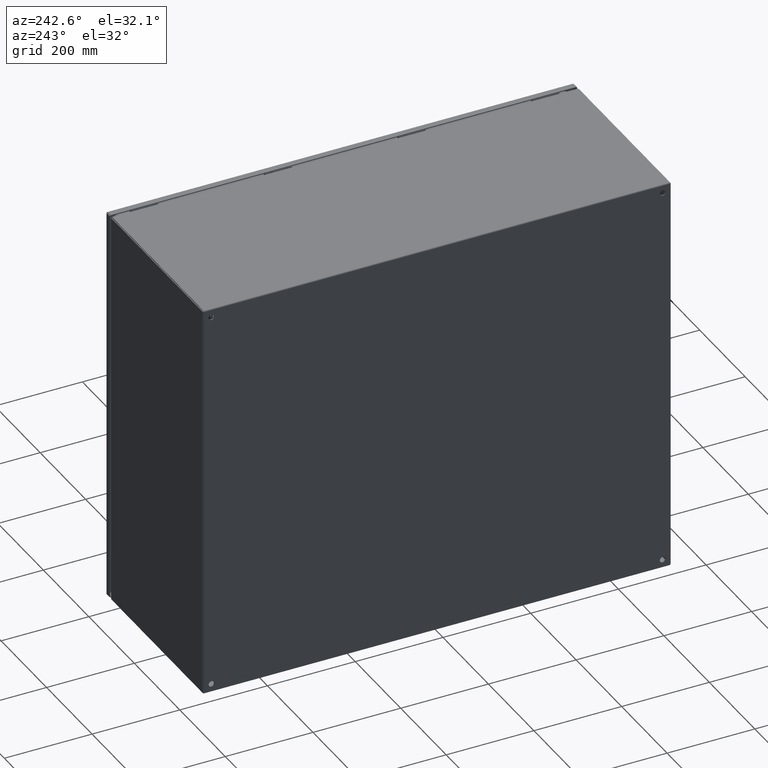
[diagram: clean part render]
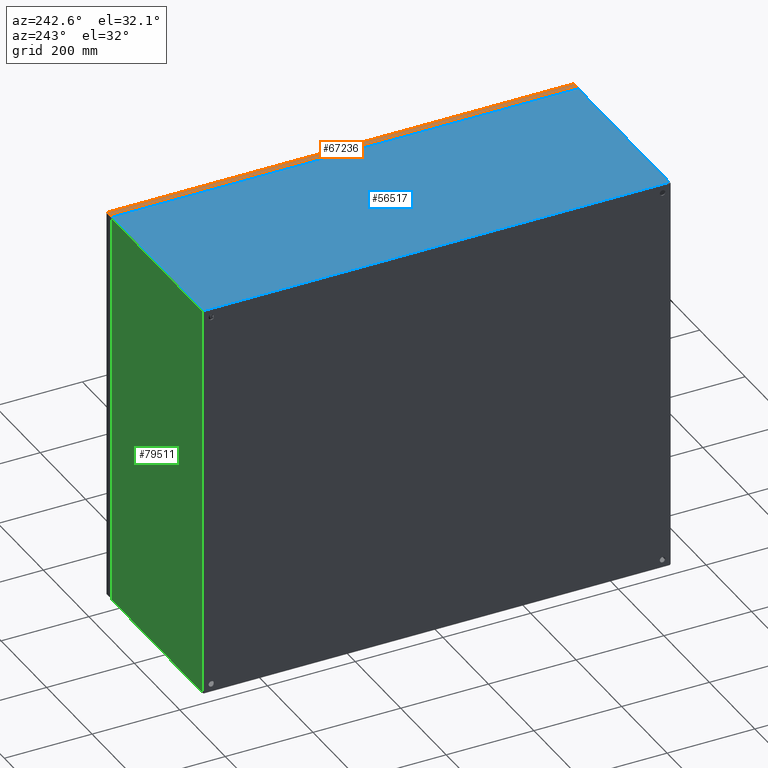
[diagram: same view with three faces highlighted in distinct colors, each labeled with its STEP entity id]
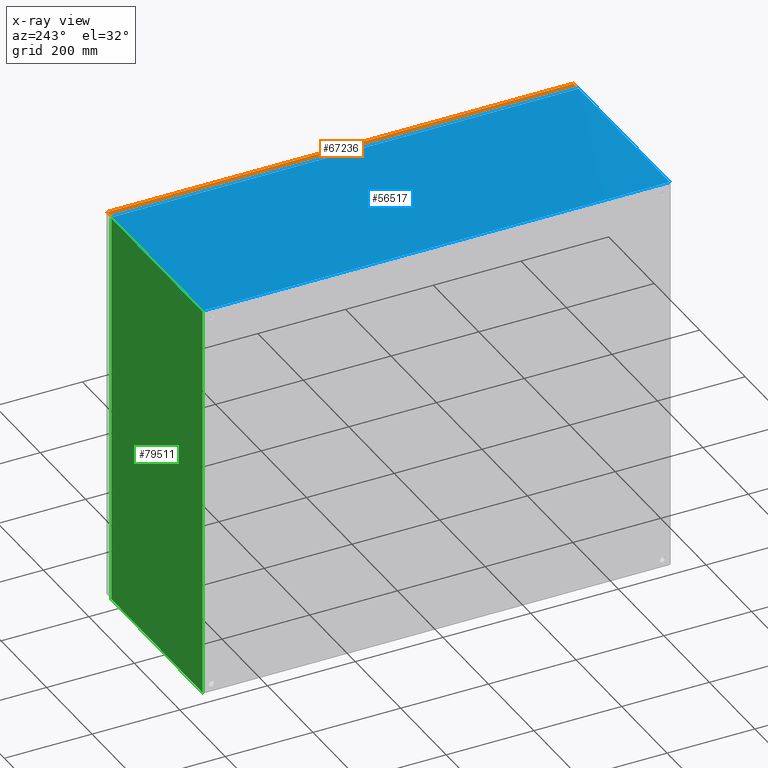
[diagram: x-ray of the same camera — body ghosted, the three highlighted faces saturated]
A machine part, auxiliary view with three faces highlighted in distinct colors.
The next image is the same camera in x-ray (body ghosted, the three faces saturated) — at least one of them is partly hidden behind the body in this view.
Their STEP definitions:

[orange] entity #67236 — the highlighted planar face has unit normal (-0, -0, 1).
#1402 = DIRECTION ( 'NONE',  ( -1.000000000000000000, 6.123031769111889989E-17, 0.0000000000000000000 ) ) ;
#1494 = FACE_OUTER_BOUND ( 'NONE', #92315, .T. ) ;
#1743 = DIRECTION ( 'NONE',  ( 6.123031769111889989E-17, 1.000000000000000000, -0.0000000000000000000 ) ) ;
#4635 = CARTESIAN_POINT ( 'NONE',  ( -17.99599999999999511, -16.72900000000008092, -20.87649999999403505 ) ) ;
#9529 = CARTESIAN_POINT ( 'NONE',  ( -17.99599999999999511, -16.21200000000003882, -20.91242125983655598 ) ) ;
#10600 = CARTESIAN_POINT ( 'NONE',  ( -17.99599999999999511, -16.77450000000003882, 20.91242125984848599 ) ) ;
#13125 = VERTEX_POINT ( 'NONE', #9529 ) ;
#14225 = CARTESIAN_POINT ( 'NONE',  ( -17.99599999999999511, -16.72900000000005960, -20.91242125983655598 ) ) ;
#17725 = ORIENTED_EDGE ( 'NONE', *, *, #102538, .T. ) ;
#20635 = VECTOR ( 'NONE', #89660, 39.37007874015748143 ) ;
#20979 = VECTOR ( 'NONE', #110956, 39.37007874015748143 ) ;
#25562 = VERTEX_POINT ( 'NONE', #65019 ) ;
#27446 = CARTESIAN_POINT ( 'NONE',  ( -17.99599999999999511, -16.21200000000003882, -20.91242125983655598 ) ) ;
#36536 = DIRECTION ( 'NONE',  ( -6.123031769111889989E-17, -1.000000000000000000, 0.0000000000000000000 ) ) ;
#50634 = LINE ( 'NONE', #4635, #92584 ) ;
#56136 = LINE ( 'NONE', #10600, #96622 ) ;
#58624 = EDGE_CURVE ( 'NONE', #25562, #105261, #50634, .T. ) ;
#65019 = CARTESIAN_POINT ( 'NONE',  ( -17.99599999999999511, -16.72900000000005605, 20.91242125984848599 ) ) ;
#66164 = EDGE_CURVE ( 'NONE', #118208, #13125, #82690, .T. ) ;
#67236 = ADVANCED_FACE ( 'NONE', ( #1494 ), #73721, .T. ) ;
#73721 = PLANE ( 'NONE',  #102530 ) ;
#75344 = CARTESIAN_POINT ( 'NONE',  ( -17.99599999999999511, -16.21200000000003882, 20.91242125984848599 ) ) ;
#82690 = LINE ( 'NONE', #116692, #20635 ) ;
#83012 = LINE ( 'NONE', #27446, #20979 ) ;
#86638 = DIRECTION ( 'NONE',  ( -0.0000000000000000000, -6.123031769111889989E-17, -1.000000000000000000 ) ) ;
#89660 = DIRECTION ( 'NONE',  ( -0.0000000000000000000, -0.0000000000000000000, -1.000000000000000000 ) ) ;
#92315 = EDGE_LOOP ( 'NONE', ( #103328, #107496, #108045, #17725 ) ) ;
#92584 = VECTOR ( 'NONE', #86638, 39.37007874015748143 ) ;
#96622 = VECTOR ( 'NONE', #1743, 39.37007874015748143 ) ;
#102179 = EDGE_CURVE ( 'NONE', #25562, #118208, #56136, .T. ) ;
#102530 = AXIS2_PLACEMENT_3D ( 'NONE', #119662, #1402, #36536 ) ;
#102538 = EDGE_CURVE ( 'NONE', #13125, #105261, #83012, .T. ) ;
#103328 = ORIENTED_EDGE ( 'NONE', *, *, #58624, .F. ) ;
#105261 = VERTEX_POINT ( 'NONE', #14225 ) ;
#107496 = ORIENTED_EDGE ( 'NONE', *, *, #102179, .T. ) ;
#108045 = ORIENTED_EDGE ( 'NONE', *, *, #66164, .T. ) ;
#110956 = DIRECTION ( 'NONE',  ( 0.0000000000000000000, -1.000000000000000000, -0.0000000000000000000 ) ) ;
#116692 = CARTESIAN_POINT ( 'NONE',  ( -17.99599999999999511, -16.21200000000003882, -20.87649999999403505 ) ) ;
#118208 = VERTEX_POINT ( 'NONE', #75344 ) ;
#119662 = CARTESIAN_POINT ( 'NONE',  ( -17.99599999999999511, -16.77450000000003882, -20.87649999999403505 ) ) ;

[blue] entity #56517 — the highlighted planar face has unit normal (-0, -0, -1).
#2256 = CARTESIAN_POINT ( 'NONE',  ( -18.00000000000000000, -16.00000000000000000, -146.4060000000000059 ) ) ;
#3836 = VERTEX_POINT ( 'NONE', #108153 ) ;
#4781 = CARTESIAN_POINT ( 'NONE',  ( -18.00000000000000355, -0.07200000000000078559, 20.92800000000000438 ) ) ;
#7304 = DIRECTION ( 'NONE',  ( 0.0000000000000000000, 0.0000000000000000000, 1.000000000000000000 ) ) ;
#14749 = LINE ( 'NONE', #4781, #27755 ) ;
#15773 = CARTESIAN_POINT ( 'NONE',  ( -18.00000000000000000, -0.1079999999999980143, -20.92799999999992266 ) ) ;
#19648 = EDGE_LOOP ( 'NONE', ( #81632, #100059, #68617, #112712 ) ) ;
#20867 = DIRECTION ( 'NONE',  ( -1.224646799147350002E-16, 1.000000000000000000, 0.0000000000000000000 ) ) ;
#23932 = FACE_OUTER_BOUND ( 'NONE', #19648, .T. ) ;
#26068 = CARTESIAN_POINT ( 'NONE',  ( -18.00000000000000000, -15.89199999999999946, -146.4060000000000059 ) ) ;
#27755 = VECTOR ( 'NONE', #31050, 39.37007874015748143 ) ;
#31050 = DIRECTION ( 'NONE',  ( -5.751216582458665737E-49, 1.000000000000000000, -4.696224729009950149E-33 ) ) ;
#31810 = EDGE_CURVE ( 'NONE', #108813, #3836, #76095, .T. ) ;
#32457 = VERTEX_POINT ( 'NONE', #114344 ) ;
#39813 = PLANE ( 'NONE',  #84505 ) ;
#41284 = EDGE_CURVE ( 'NONE', #85020, #32457, #64818, .T. ) ;
#42076 = EDGE_CURVE ( 'NONE', #85020, #3836, #54258, .T. ) ;
#45514 = DIRECTION ( 'NONE',  ( 5.751216582458665737E-49, -1.000000000000000000, -4.696224729009950149E-33 ) ) ;
#53199 = VECTOR ( 'NONE', #7304, 39.37007874015748143 ) ;
#54258 = LINE ( 'NONE', #82681, #99015 ) ;
#56517 = ADVANCED_FACE ( 'NONE', ( #23932 ), #39813, .F. ) ;
#57175 = DIRECTION ( 'NONE',  ( 1.000000000000000000, 1.224646799147350002E-16, 0.0000000000000000000 ) ) ;
#62442 = DIRECTION ( 'NONE',  ( -0.0000000000000000000, 0.0000000000000000000, -1.000000000000000000 ) ) ;
#64818 = LINE ( 'NONE', #15773, #53199 ) ;
#65549 = CARTESIAN_POINT ( 'NONE',  ( -18.00000000000000355, -15.89199999999999946, 20.92799999999999727 ) ) ;
#66416 = CARTESIAN_POINT ( 'NONE',  ( -17.99999999999999645, -0.1079999999999980143, -20.92799999999996174 ) ) ;
#68617 = ORIENTED_EDGE ( 'NONE', *, *, #42076, .T. ) ;
#76095 = LINE ( 'NONE', #26068, #81825 ) ;
#81632 = ORIENTED_EDGE ( 'NONE', *, *, #100762, .T. ) ;
#81825 = VECTOR ( 'NONE', #62442, 39.37007874015748143 ) ;
#82681 = CARTESIAN_POINT ( 'NONE',  ( -17.99999999999999645, -0.07200000000000078559, -20.92800000000000438 ) ) ;
#84505 = AXIS2_PLACEMENT_3D ( 'NONE', #2256, #57175, #20867 ) ;
#85020 = VERTEX_POINT ( 'NONE', #66416 ) ;
#99015 = VECTOR ( 'NONE', #45514, 39.37007874015748143 ) ;
#100059 = ORIENTED_EDGE ( 'NONE', *, *, #41284, .F. ) ;
#100762 = EDGE_CURVE ( 'NONE', #108813, #32457, #14749, .T. ) ;
#108153 = CARTESIAN_POINT ( 'NONE',  ( -17.99999999999999645, -15.89199999999999946, -20.92800000000000438 ) ) ;
#108813 = VERTEX_POINT ( 'NONE', #65549 ) ;
#112712 = ORIENTED_EDGE ( 'NONE', *, *, #31810, .F. ) ;
#114344 = CARTESIAN_POINT ( 'NONE',  ( -18.00000000000000355, -0.1079999999999980143, 20.92799999999996174 ) ) ;

[green] entity #79511 — the highlighted planar face has unit normal (0, 1, 0).
#10274 = CARTESIAN_POINT ( 'NONE',  ( -121.8560000000000088, -0.07200000000000075784, 20.99999999999992539 ) ) ;
#18464 = CARTESIAN_POINT ( 'NONE',  ( -121.8560000000000088, -15.89199999999999946, 20.99999999999992539 ) ) ;
#20914 = VERTEX_POINT ( 'NONE', #31503 ) ;
#21196 = EDGE_CURVE ( 'NONE', #92298, #26031, #85053, .T. ) ;
#26031 = VERTEX_POINT ( 'NONE', #36209 ) ;
#27561 = EDGE_LOOP ( 'NONE', ( #87180, #41220, #83960, #87044 ) ) ;
#28736 = CARTESIAN_POINT ( 'NONE',  ( -17.92799999999998306, -15.89199999999999946, 20.99999999999992539 ) ) ;
#30515 = CARTESIAN_POINT ( 'NONE',  ( 17.92800000000000438, -0.07200000000000075784, 20.99999999999992539 ) ) ;
#30819 = EDGE_CURVE ( 'NONE', #26031, #111791, #70135, .T. ) ;
#31503 = CARTESIAN_POINT ( 'NONE',  ( -17.92800000000000438, -0.07200000000000075784, 20.99999999999992539 ) ) ;
#36209 = CARTESIAN_POINT ( 'NONE',  ( 17.92800000000000082, -15.89199999999999946, 20.99999999999992539 ) ) ;
#39953 = PLANE ( 'NONE',  #111746 ) ;
#41220 = ORIENTED_EDGE ( 'NONE', *, *, #21196, .T. ) ;
#44790 = CARTESIAN_POINT ( 'NONE',  ( -17.92800000000000438, -0.07200000000000075784, 20.99999999999992539 ) ) ;
#49248 = DIRECTION ( 'NONE',  ( 0.0000000000000000000, -1.224646799147350002E-16, 1.000000000000000000 ) ) ;
#52710 = DIRECTION ( 'NONE',  ( 1.000000000000000000, 0.0000000000000000000, 0.0000000000000000000 ) ) ;
#55555 = EDGE_CURVE ( 'NONE', #20914, #92298, #102307, .T. ) ;
#56192 = VECTOR ( 'NONE', #52710, 39.37007874015748143 ) ;
#65139 = EDGE_CURVE ( 'NONE', #111791, #20914, #114295, .T. ) ;
#67807 = DIRECTION ( 'NONE',  ( 0.0000000000000000000, -1.000000000000000000, -1.224646799147350002E-16 ) ) ;
#70135 = LINE ( 'NONE', #95739, #110486 ) ;
#79511 = ADVANCED_FACE ( 'NONE', ( #89072 ), #39953, .T. ) ;
#81153 = DIRECTION ( 'NONE',  ( 0.0000000000000000000, -1.000000000000000000, -1.224646799147350002E-16 ) ) ;
#83960 = ORIENTED_EDGE ( 'NONE', *, *, #30819, .T. ) ;
#85053 = LINE ( 'NONE', #18464, #56192 ) ;
#85632 = DIRECTION ( 'NONE',  ( -0.0000000000000000000, 1.000000000000000000, 1.224646799147350002E-16 ) ) ;
#87044 = ORIENTED_EDGE ( 'NONE', *, *, #65139, .T. ) ;
#87180 = ORIENTED_EDGE ( 'NONE', *, *, #55555, .T. ) ;
#89072 = FACE_OUTER_BOUND ( 'NONE', #27561, .T. ) ;
#89744 = VECTOR ( 'NONE', #100752, 39.37007874015748143 ) ;
#92298 = VERTEX_POINT ( 'NONE', #28736 ) ;
#95739 = CARTESIAN_POINT ( 'NONE',  ( 17.92800000000000438, -0.07200000000000075784, 20.99999999999992539 ) ) ;
#98065 = VECTOR ( 'NONE', #81153, 39.37007874015748143 ) ;
#100752 = DIRECTION ( 'NONE',  ( -1.000000000000000000, -0.0000000000000000000, -0.0000000000000000000 ) ) ;
#102307 = LINE ( 'NONE', #44790, #98065 ) ;
#104522 = CARTESIAN_POINT ( 'NONE',  ( -121.8560000000000088, -0.07200000000000075784, 20.99999999999992539 ) ) ;
#110486 = VECTOR ( 'NONE', #85632, 39.37007874015748143 ) ;
#111746 = AXIS2_PLACEMENT_3D ( 'NONE', #104522, #49248, #67807 ) ;
#111791 = VERTEX_POINT ( 'NONE', #30515 ) ;
#114295 = LINE ( 'NONE', #10274, #89744 ) ;